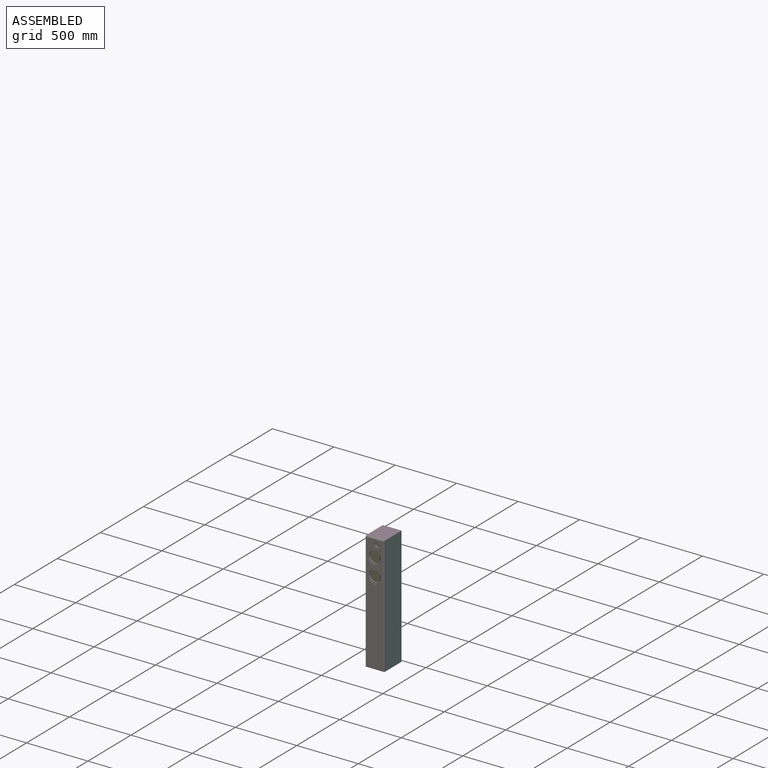
[diagram: assembled view]
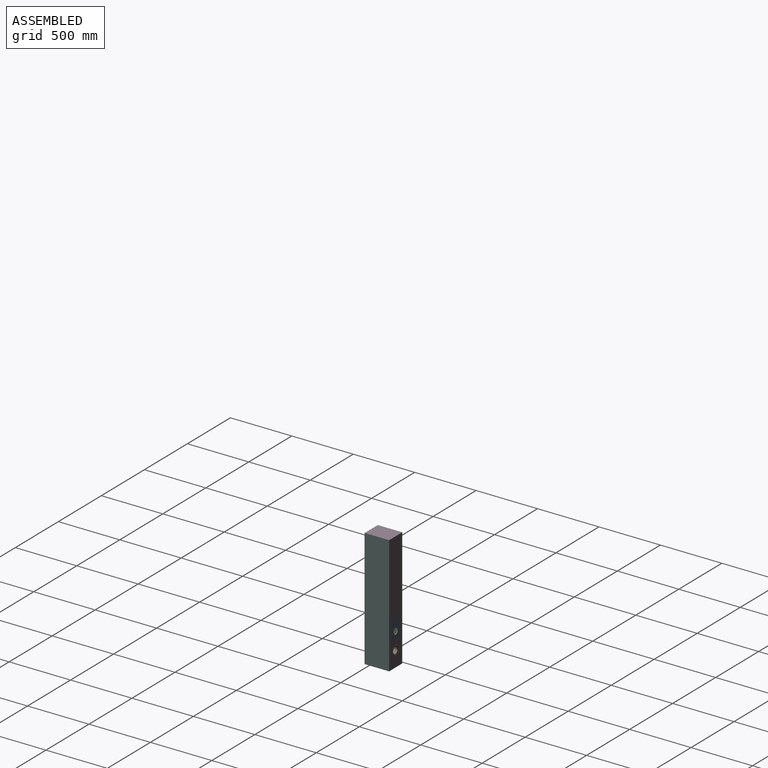
[diagram: assembled view, second angle]
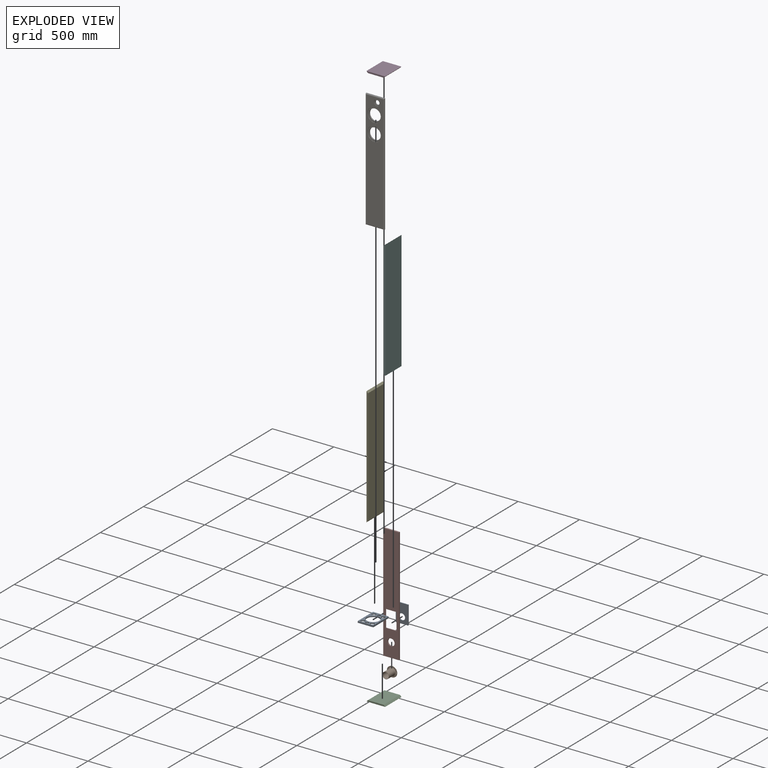
[diagram: exploded view]
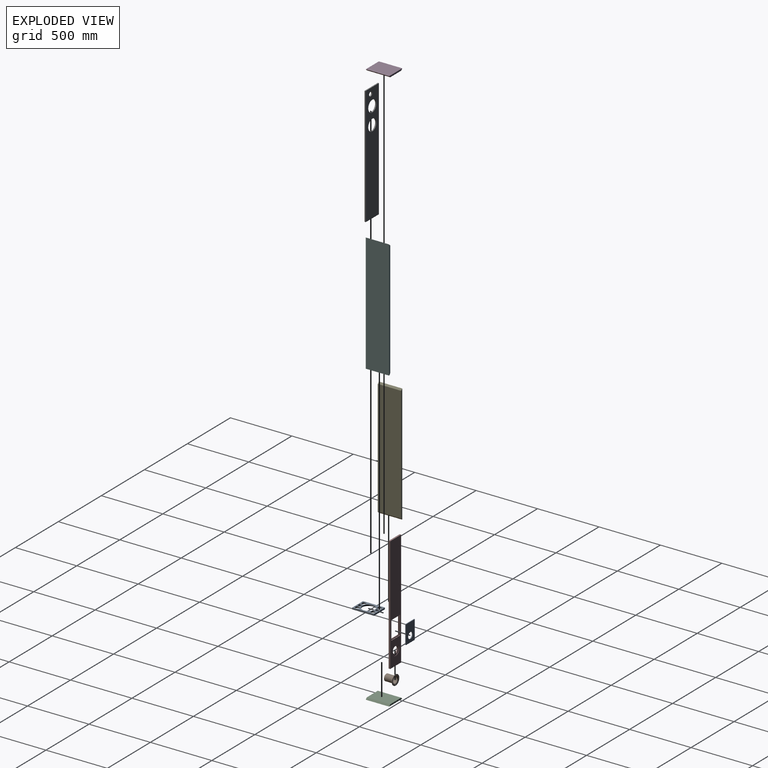
[diagram: exploded view, second angle]
FCSTD DOCUMENT  (FreeCAD 0.21R33771 (Git))
Label: Overnight Sensations TMM Cabinet
License: All rights reserved
objects: Sketcher::SketchObject×10, TechDraw::DrawViewDimension×10, PartDesign::Pad×8, PartDesign::Body×8, App::Part×7, PartDesign::Pocket×6, TechDraw::DrawProjGroupItem×4, PartDesign::Fillet×2, TechDraw::DrawProjGroup×2, TechDraw::DrawHatch×2, Spreadsheet::Sheet×1, Part::FeaturePython×1, App::Link×1, App::DocumentObjectGroup×1, TechDraw::DrawSVGTemplate×1, TechDraw::DrawPage×1
note: 68 computed .brp shape members not serialized (recipe doc carries the construction recipe); baked Part::Feature solids carry a one-line shape summary decoded from their .brp
EXTERNAL_REF file=2x3 Speaker Port.FCStd obj=Body

FEATURE [Sketcher::SketchObject] Sketch004
  FullyConstrained = true
  MapMode = 5
  Placement = pos=(0,0,0) rot=(1,0,0;1.5708rad)
  expr: Constraints[10] = Spreadsheet.width
  expr: Constraints[7] = Spreadsheet.thickness
  expr: Constraints[8] = Spreadsheet.thickness
  expr: Constraints[9] = Spreadsheet.thickness
  sketch-geometry (4):
    g0: LineSegment StartX=0 StartY=0 StartZ=0 EndX=152.4 EndY=0 EndZ=0
    g1: LineSegment StartX=0 StartY=0 StartZ=0 EndX=12.7 EndY=12.7 EndZ=0
    g2: LineSegment StartX=152.4 StartY=0 StartZ=0 EndX=139.7 EndY=12.7 EndZ=0
    g3: LineSegment StartX=12.7 StartY=12.7 StartZ=0 EndX=139.7 EndY=12.7 EndZ=0
  constraints (11):
    c: Horizontal(g0)
    c: Coincident(g0,g-1)
    c: Coincident(g1,g0)
    c: Coincident(g2,g0)
    c: Coincident(g3,g1)
    c: Coincident(g3,g2)
    c: Horizontal(g3)
    c: DistanceY(g-1,g1) = 12.7
    c: DistanceX(g0,g1) = 12.7
    c: DistanceX(g2,g0) = 12.7
    c: DistanceX(g0,g0) = 152.4
FEATURE [PartDesign::Pad] Pad002
  Direction = (0,-1,2e-16)
  Length = 190.5
  Length2 = 10
  Placement = pos=(0,0,0) rot=(1,0,0;1.5708rad)
  Profile = -> Sketch004
  ReferenceAxis = -> Sketch004 [N_Axis]
  Type = 0
  expr: Length = Spreadsheet.depth - Spreadsheet.thickness
FEATURE [PartDesign::Body] Body002
  Group = -> [Sketch004,Pad002]
  Origin = -> Origin002
  Tip = -> Pad002
FEATURE [Sketcher::SketchObject] Sketch005
  FullyConstrained = true
  MapMode = 5
  Placement = pos=(0,0,0) rot=(1,0,0;1.5708rad)
  expr: Constraints[10] = Spreadsheet.width
  expr: Constraints[7] = Spreadsheet.thickness
  expr: Constraints[8] = Spreadsheet.thickness
  expr: Constraints[9] = Spreadsheet.thickness
  sketch-geometry (4):
    g0: LineSegment StartX=0 StartY=0 StartZ=0 EndX=152.4 EndY=0 EndZ=0
    g1: LineSegment StartX=0 StartY=0 StartZ=0 EndX=12.7 EndY=12.7 EndZ=0
    g2: LineSegment StartX=152.4 StartY=0 StartZ=0 EndX=139.7 EndY=12.7 EndZ=0
    g3: LineSegment StartX=12.7 StartY=12.7 StartZ=0 EndX=139.7 EndY=12.7 EndZ=0
  constraints (11):
    c: Horizontal(g0)
    c: Coincident(g0,g-1)
    c: Coincident(g1,g0)
    c: Coincident(g2,g0)
    c: Coincident(g3,g1)
    c: Coincident(g3,g2)
    c: Horizontal(g3)
    c: DistanceY(g-1,g1) = 12.7
    c: DistanceX(g0,g1) = 12.7
    c: DistanceX(g2,g0) = 12.7
    c: DistanceX(g0,g0) = 152.4
FEATURE [PartDesign::Pad] Pad003
  Direction = (0,-1,2e-16)
  Length = 190.5
  Length2 = 10
  Placement = pos=(0,0,0) rot=(1,0,0;1.5708rad)
  Profile = -> Sketch005
  ReferenceAxis = -> Sketch005 [N_Axis]
  Type = 0
  expr: Length = Spreadsheet.depth - Spreadsheet.thickness
FEATURE [PartDesign::Body] Body003
  Group = -> [Sketch005,Pad003]
  Origin = -> Origin003
  Placement = pos=(0,0,0) rot=(0,1,0;3.14159rad)
  Tip = -> Pad003
FEATURE [App::Part] Part  label="bottom"
  Group = -> [Body002]
  Origin = -> Origin
FEATURE [App::Part] Part001  label="top"
  Group = -> [Body003]
  Origin = -> Origin004
  Placement = pos=(152.4,0,965.2) rot=(0,0,1;0rad)
  expr: .Placement.Base.x = Spreadsheet.width
  expr: .Placement.Base.z = Spreadsheet.height
FEATURE [Sketcher::SketchObject] Sketch006
  FullyConstrained = true
  MapMode = 5
  Placement = pos=(0,0,0) rot=(1,0,0;1.5708rad)
  expr: Constraints[1] = Spreadsheet.height
  expr: Constraints[2] = Spreadsheet.thickness
  expr: Constraints[6] = Spreadsheet.thickness
  sketch-geometry (4):
    g0: LineSegment StartX=0 StartY=965.2 StartZ=0 EndX=0 EndY=0 EndZ=0
    g1: LineSegment StartX=0 StartY=0 StartZ=0 EndX=12.7 EndY=12.7 EndZ=0
    g2: LineSegment StartX=0 StartY=965.2 StartZ=0 EndX=12.7 EndY=952.5 EndZ=0
    g3: LineSegment StartX=12.7 StartY=12.7 StartZ=0 EndX=12.7 EndY=952.5 EndZ=0
  constraints (11):
    c: Vertical(g0)
    c: DistanceY(g0,g0) = 965.2
    c: DistanceY(g2,g0) = 12.7
    c: Coincident(g3,g1)
    c: Coincident(g3,g2)
    c: Vertical(g3)
    c: DistanceX(g0,g1) = 12.7
    c: Angle(g1,g0) = 0.785398
    c: Coincident(g0,g2)
    c: Coincident(g0,g1)
    c: Coincident(g0,g-1)
FEATURE [PartDesign::Pad] Pad
  Direction = (0,-1,2e-16)
  Length = 190.5
  Length2 = 10
  Placement = pos=(0,0,0) rot=(1,0,0;1.5708rad)
  Profile = -> Sketch006
  ReferenceAxis = -> Sketch006 [N_Axis]
  Type = 0
  expr: Length = Spreadsheet.depth - Spreadsheet.thickness
FEATURE [PartDesign::Body] Body
  Group = -> [Sketch006,Pad]
  Origin = -> Origin006
  Tip = -> Pad
FEATURE [App::Part] Part002  label="left"
  Group = -> [Body]
  Origin = -> Origin005
FEATURE [Sketcher::SketchObject] Sketch007
  FullyConstrained = true
  MapMode = 5
  Placement = pos=(0,0,0) rot=(1,0,0;1.5708rad)
  expr: Constraints[1] = Spreadsheet.height
  expr: Constraints[2] = Spreadsheet.thickness
  expr: Constraints[6] = Spreadsheet.thickness
  sketch-geometry (4):
    g0: LineSegment StartX=0 StartY=965.2 StartZ=0 EndX=0 EndY=0 EndZ=0
    g1: LineSegment StartX=0 StartY=0 StartZ=0 EndX=12.7 EndY=12.7 EndZ=0
    g2: LineSegment StartX=0 StartY=965.2 StartZ=0 EndX=12.7 EndY=952.5 EndZ=0
    g3: LineSegment StartX=12.7 StartY=12.7 StartZ=0 EndX=12.7 EndY=952.5 EndZ=0
  constraints (11):
    c: Vertical(g0)
    c: DistanceY(g0,g0) = 965.2
    c: DistanceY(g2,g0) = 12.7
    c: Coincident(g3,g1)
    c: Coincident(g3,g2)
    c: Vertical(g3)
    c: DistanceX(g0,g1) = 12.7
    c: Angle(g1,g0) = 0.785398
    c: Coincident(g0,g2)
    c: Coincident(g0,g1)
    c: Coincident(g0,g-1)
FEATURE [PartDesign::Pad] Pad004
  Direction = (0,-1,2e-16)
  Length = 190.5
  Length2 = 10
  Placement = pos=(0,0,0) rot=(1,0,0;1.5708rad)
  Profile = -> Sketch007
  ReferenceAxis = -> Sketch007 [N_Axis]
  Type = 0
  expr: Length = Spreadsheet.depth - Spreadsheet.thickness
FEATURE [PartDesign::Body] Body004
  Group = -> [Sketch007,Pad004]
  Origin = -> Origin008
  Tip = -> Pad004
FEATURE [App::Part] Part003  label="right"
  Group = -> [Body004]
  Origin = -> Origin007
  Placement = pos=(152.4,-190.5,0) rot=(0,0,1;3.14159rad)
  expr: .Placement.Base.x = Spreadsheet.width
  expr: .Placement.Base.y = -Spreadsheet.depth + Spreadsheet.thickness
FEATURE [Spreadsheet::Sheet] Spreadsheet
  cells = A1='Speaker Height; B1(height)==38 "; A2='Speaker Width; B2(width)==6 "; A3='Speaker Depth; B3(depth)==8 "; A4='Material Thickness; B4(thickness)==0.5 "; A7='Tweeter From Top; B7(tweeter_top)==1.75 "; A8='Tweeter From Side; B8(tweeter_side)==3.75 "; C8='0.625 from side, not used; A10='Mid Speaker From Top; B10(mid_top)==5.5 "; A11='Mid From Side; B11(mid_side)==width / 2; C11='centered, not used; A13='Low From Top; B13(low_top)==11 "; A14='Low From Side; B14(low_side)==width / 2; C14='centered, not used; A16='Driver Dimensions; B16='diameter; A17='HiVi B4N Diameter; B17(driver_diameter)==4.59 "; C17='https://www.parts-express.com/HiVi-B4N-4-Aluminum-Midbass-Round-Frame-297-429?quantity=1; A18='HiVi B4N Cutout Diameter; B18(driver_cutout)==3.66 "; A19='HiVi B4N Depth; B19==2.85 "; A20='HiVi B4N Recess; B20(driver_recess)==0.125 "; A22='HiVi T20 Diameter; B22(tweeter_diameter)==2 "; C22='https://www.parts-express.com/HiVi-T20-8-3-4-20mm-Textile-Dome-Tweeter-8-Ohm-297-464?quantity=1; A23='HiVi T20 Cutout Diameter; B23(tweeter_cutout)==1.385 "; A24='HiVi T20 Depth; B24==0.5 "; A25='HiVi T20 Recess; B25(tweeter_recess)==0.1875 "; A27='Port From Bottom; B27(port_bottom)==5 "; A28='Port Diameter; B28(port_diameter)==2.125 "; A29='Port Cutout; B29(port_cutout_diameter)==port_diameter + 0.125 "; A30='Port Lentgh; B30(port_length)==3 "; A31='Port Flange Diameter; B31(port_flange_diameter)==3.25 "; A32='Port Recess; B32(port_recess)==0.125 "
FEATURE [Sketcher::SketchObject] Sketch009
  FullyConstrained = true
  MapMode = 5
  Placement = pos=(0,-12.7,0) rot=(1,0,0;1.5708rad)
  expr: Constraints[10] = Spreadsheet.height
  expr: Constraints[11] = Spreadsheet.tweeter_cutout
  expr: Constraints[12] = Spreadsheet.driver_cutout
  expr: Constraints[13] = Spreadsheet.driver_cutout
  expr: Constraints[14] = Spreadsheet.tweeter_top
  expr: Constraints[15] = Spreadsheet.mid_top
  expr: Constraints[16] = Spreadsheet.low_top
  expr: Constraints[17] = Spreadsheet.width * 0.625
  expr: Constraints[18] = Spreadsheet.tweeter_diameter
  expr: Constraints[21] = Spreadsheet.driver_diameter
  expr: Constraints[23] = Spreadsheet.driver_diameter
  expr: Constraints[24] = Spreadsheet.width / 2
  expr: Constraints[25] = Spreadsheet.width / 2
  expr: Constraints[9] = Spreadsheet.width
  sketch-geometry (10):
    g0: LineSegment StartX=0 StartY=0 StartZ=0 EndX=152.4 EndY=0 EndZ=0
    g1: LineSegment StartX=152.4 StartY=0 StartZ=0 EndX=152.4 EndY=965.2 EndZ=0
    g2: LineSegment StartX=152.4 StartY=965.2 StartZ=0 EndX=0 EndY=965.2 EndZ=0
    g3: LineSegment StartX=0 StartY=965.2 StartZ=0 EndX=0 EndY=0 EndZ=0
    g4: Circle CenterX=76.2 CenterY=825.5 CenterZ=0 NormalX=0 NormalY=0 NormalZ=1 AngleXU=0 Radius=46.482
    g5: Circle CenterX=76.2 CenterY=685.8 CenterZ=0 NormalX=0 NormalY=0 NormalZ=1 AngleXU=0 Radius=46.482
    g6: Circle CenterX=95.25 CenterY=920.75 CenterZ=0 NormalX=0 NormalY=0 NormalZ=1 AngleXU=0 Radius=17.5895
    g7: Circle CenterX=95.25 CenterY=920.75 CenterZ=0 NormalX=0 NormalY=0 NormalZ=1 AngleXU=0 Radius=25.4
    g8: Circle CenterX=76.2 CenterY=825.5 CenterZ=0 NormalX=0 NormalY=0 NormalZ=1 AngleXU=0 Radius=58.293
    g9: Circle CenterX=76.2 CenterY=685.8 CenterZ=0 NormalX=0 NormalY=0 NormalZ=1 AngleXU=0 Radius=58.293
  constraints (26):
    c: Coincident(g0,g1)
    c: Coincident(g1,g2)
    c: Coincident(g2,g3)
    c: Coincident(g3,g0)
    c: Horizontal(g0)
    c: Horizontal(g2)
    c: Vertical(g1)
    c: Vertical(g3)
    c: Coincident(g0,g-1)
    c: DistanceX(g2,g2) = 152.4
    c: DistanceY(g1,g1) = 965.2
    c: Diameter(g6) = 35.179
    c: Diameter(g4) = 92.964
    c: Diameter(g5) = 92.964
    c: Distance(g6,g2) = 44.45
    c: Distance(g4,g2) = 139.7
    c: Distance(g5,g2) = 279.4
    c: Distance(g6,g3) = 95.25
    c: Diameter(g7) = 50.8
    c: Coincident(g7,g6)
    c: Coincident(g8,g4)
    c: Diameter(g8) = 116.586
    c: Coincident(g9,g5)
    c: Diameter(g9) = 116.586
    c: DistanceX(g2,g4) = 76.2
    c: Distance(g5,g3) = 76.2
FEATURE [Sketcher::SketchObject] Sketch010
  FullyConstrained = true
  MapMode = 5
  Placement = pos=(0,0,0) rot=(1,0,0;1.5708rad)
  expr: Constraints[10] = Spreadsheet.height
  expr: Constraints[9] = Spreadsheet.width
  sketch-geometry (4):
    g0: LineSegment StartX=0 StartY=0 StartZ=0 EndX=152.4 EndY=0 EndZ=0
    g1: LineSegment StartX=152.4 StartY=0 StartZ=0 EndX=152.4 EndY=965.2 EndZ=0
    g2: LineSegment StartX=152.4 StartY=965.2 StartZ=0 EndX=0 EndY=965.2 EndZ=0
    g3: LineSegment StartX=0 StartY=965.2 StartZ=0 EndX=0 EndY=0 EndZ=0
  constraints (11):
    c: Coincident(g0,g1)
    c: Coincident(g1,g2)
    c: Coincident(g2,g3)
    c: Coincident(g3,g0)
    c: Horizontal(g0)
    c: Horizontal(g2)
    c: Vertical(g1)
    c: Vertical(g3)
    c: Coincident(g0,g-1)
    c: DistanceX(g2,g2) = 152.4
    c: DistanceY(g1,g1) = 965.2
FEATURE [PartDesign::Pad] Pad005
  Direction = (0,-1,2e-16)
  Length = 12.7
  Length2 = 10
  Placement = pos=(0,0,0) rot=(1,0,0;1.5708rad)
  Profile = -> Sketch010
  ReferenceAxis = -> Sketch010 [N_Axis]
  Type = 0
  expr: Length = Spreadsheet.thickness
FEATURE [PartDesign::Pocket] Pocket
  BaseFeature = -> Pad005
  Direction = (0,1,-2e-16)
  Length = 5
  Length2 = 5
  Placement = pos=(0,0,0) rot=(1,0,0;1.5708rad)
  Profile = -> Sketch009 [Edge7,Edge5,Edge6]
  ReferenceAxis = -> Sketch009 [N_Axis]
  Type = 1
FEATURE [PartDesign::Pocket] Pocket001
  BaseFeature = -> Pocket
  Direction = (0,1,-2e-16)
  Length = 3.175
  Length2 = 5
  Placement = pos=(0,0,0) rot=(1,0,0;1.5708rad)
  Profile = -> Sketch009 [Edge9,Edge10]
  ReferenceAxis = -> Sketch009 [N_Axis]
  Type = 0
  expr: Length = Spreadsheet.driver_recess
FEATURE [PartDesign::Pocket] Pocket002
  BaseFeature = -> Pocket001
  Direction = (0,1,-2e-16)
  Length = 3.175
  Length2 = 5
  Placement = pos=(0,0,0) rot=(1,0,0;1.5708rad)
  Profile = -> Sketch009 [Edge8]
  ReferenceAxis = -> Sketch009 [N_Axis]
  Type = 0
  expr: Length = Spreadsheet.tweeter_recess
FEATURE [Sketcher::SketchObject] Sketch011
  FullyConstrained = true
  MapMode = 5
  Placement = pos=(0,0,0) rot=(1,0,0;1.5708rad)
  expr: Constraints[10] = Spreadsheet.height - 2 * Spreadsheet.thickness
  expr: Constraints[9] = Spreadsheet.width - 2 * Spreadsheet.thickness
  sketch-geometry (4):
    g0: LineSegment StartX=0 StartY=0 StartZ=0 EndX=127 EndY=0 EndZ=0
    g1: LineSegment StartX=127 StartY=0 StartZ=0 EndX=127 EndY=939.8 EndZ=0
    g2: LineSegment StartX=127 StartY=939.8 StartZ=0 EndX=0 EndY=939.8 EndZ=0
    g3: LineSegment StartX=0 StartY=939.8 StartZ=0 EndX=0 EndY=0 EndZ=0
  constraints (11):
    c: Coincident(g0,g1)
    c: Coincident(g1,g2)
    c: Coincident(g2,g3)
    c: Coincident(g3,g0)
    c: Horizontal(g0)
    c: Horizontal(g2)
    c: Vertical(g1)
    c: Vertical(g3)
    c: Coincident(g0,g-1)
    c: DistanceX(g2,g2) = 127
    c: DistanceY(g1,g1) = 939.8
FEATURE [PartDesign::Pad] Pad006
  Direction = (0,-1,2e-16)
  Length = 12.7
  Length2 = 10
  Placement = pos=(0,0,0) rot=(1,0,0;1.5708rad)
  Profile = -> Sketch011
  ReferenceAxis = -> Sketch011 [N_Axis]
  Type = 0
  expr: Length = Spreadsheet.thickness
FEATURE [Sketcher::SketchObject] Sketch012
  FullyConstrained = true
  MapMode = 5
  Placement = pos=(0,-12.7,0) rot=(1,0,0;1.5708rad)
  expr: Constraints[0] = Spreadsheet.port_bottom - Spreadsheet.thickness
  expr: Constraints[1] = (Spreadsheet.width - Spreadsheet.thickness * 2) / 2
  expr: Constraints[2] = Spreadsheet.port_cutout_diameter
  expr: Constraints[4] = Spreadsheet.port_flange_diameter
  sketch-geometry (10):
    g0: Circle CenterX=63.5 CenterY=114.3 CenterZ=0 NormalX=0 NormalY=0 NormalZ=1 AngleXU=0 Radius=28.575
    g1: Circle CenterX=63.5 CenterY=114.3 CenterZ=0 NormalX=0 NormalY=0 NormalZ=1 AngleXU=0 Radius=41.275
    g2: LineSegment StartX=12.7 StartY=203.2 StartZ=0 EndX=114.3 EndY=203.2 EndZ=0
    g3: LineSegment StartX=114.3 StartY=203.2 StartZ=0 EndX=114.3 EndY=355.6 EndZ=0
    g4: LineSegment StartX=114.3 StartY=355.6 StartZ=0 EndX=12.7 EndY=355.6 EndZ=0
    g5: LineSegment StartX=12.7 StartY=355.6 StartZ=0 EndX=12.7 EndY=203.2 EndZ=0
    g6: LineSegment StartX=19.05 StartY=209.55 StartZ=0 EndX=107.95 EndY=209.55 EndZ=0
    g7: LineSegment StartX=107.95 StartY=209.55 StartZ=0 EndX=107.95 EndY=349.25 EndZ=0
    g8: LineSegment StartX=107.95 StartY=349.25 StartZ=0 EndX=19.05 EndY=349.25 EndZ=0
    g9: LineSegment StartX=19.05 StartY=349.25 StartZ=0 EndX=19.05 EndY=209.55 EndZ=0
  constraints (29):
    c: DistanceY(g-1,g0) = 114.3
    c: Distance(g0,g-2) = 63.5
    c: Diameter(g0) = 57.15
    c: Coincident(g1,g0)
    c: Diameter(g1) = 82.55
    c: Coincident(g2,g3)
    c: Coincident(g3,g4)
    c: Coincident(g4,g5)
    c: Coincident(g5,g2)
    c: Horizontal(g2)
    c: Horizontal(g4)
    c: Vertical(g3)
    c: Vertical(g5)
    c: DistanceX(g4,g4) = 101.6
    c: DistanceY(g5,g5) = 152.4
    c: DistanceY(g-1,g2) = 203.2
    c: Distance(g2,g-2) = 12.7
    c: Coincident(g6,g7)
    c: Coincident(g7,g8)
    c: Coincident(g8,g9)
    c: Coincident(g9,g6)
    c: Horizontal(g6)
    c: Horizontal(g8)
    c: Vertical(g7)
    c: Vertical(g9)
    c: Distance(g8,g5) = 6.35
    c: Distance(g2,g6) = 6.35
    c: Distance(g3,g7) = 6.35
    c: Distance(g4,g8) = 6.35
FEATURE [PartDesign::Pocket] Pocket003
  BaseFeature = -> Pad006
  Direction = (0,1,-2e-16)
  Length = 5
  Length2 = 5
  Placement = pos=(0,0,0) rot=(1,0,0;1.5708rad)
  Profile = -> Sketch012 [Edge1,Edge7,Edge10,Edge9,Edge8]
  ReferenceAxis = -> Sketch012 [N_Axis]
  Type = 1
FEATURE [PartDesign::Pocket] Pocket004
  BaseFeature = -> Pocket003
  Direction = (0,1,-2e-16)
  Length = 3.175
  Length2 = 5
  Placement = pos=(0,0,0) rot=(1,0,0;1.5708rad)
  Profile = -> Sketch012 [Edge2]
  ReferenceAxis = -> Sketch012 [N_Axis]
  Type = 0
  expr: Length = Spreadsheet.port_recess
FEATURE [PartDesign::Pocket] Pocket005
  BaseFeature = -> Pocket004
  Direction = (0,1,-2e-16)
  Length = 6.35
  Length2 = 5
  Placement = pos=(0,0,0) rot=(1,0,0;1.5708rad)
  Profile = -> Sketch012 [Edge6,Edge5,Edge4,Edge3]
  ReferenceAxis = -> Sketch012 [N_Axis]
  Type = 0
FEATURE [PartDesign::Body] Body006
  Group = -> [Sketch011,Pad006,Sketch012,Pocket003,Pocket004,Pocket005]
  Origin = -> Origin012
  Tip = -> Pocket005
FEATURE [App::Part] Part005  label="back"
  Group = -> [Body006]
  Origin = -> Origin011
  Placement = pos=(139.7,-12.7,12.7) rot=(0,0,1;3.14159rad)
FEATURE [PartDesign::Fillet] Fillet002
  Base = -> Pocket002 [Edge15,Edge10,Edge7,Edge4]
  BaseFeature = -> Pocket002
  Placement = pos=(0,0,0) rot=(1,0,0;1.5708rad)
  Radius = 6.35
  SupportTransform = false
  UseAllEdges = false
FEATURE [PartDesign::Body] Body005
  Group = -> [Sketch009,Sketch010,Pad005,Pocket,Pocket001,Pocket002,Fillet002]
  Origin = -> Origin010
  Tip = -> Fillet002
FEATURE [App::Part] Part004  label="baffle"
  Group = -> [Body005]
  Origin = -> Origin009
  Placement = pos=(0,-190.5,0) rot=(0,0,1;0rad)
  expr: .Placement.Base.y = -Spreadsheet.depth + Spreadsheet.thickness
FEATURE [Sketcher::SketchObject] Sketch013
  FullyConstrained = true
  MapMode = 5
  sketch-geometry (14):
    g0: LineSegment StartX=0 StartY=0 StartZ=0 EndX=127 EndY=0 EndZ=0
    g1: LineSegment StartX=127 StartY=0 StartZ=0 EndX=127 EndY=177.8 EndZ=0
    g2: LineSegment StartX=127 StartY=177.8 StartZ=0 EndX=0 EndY=177.8 EndZ=0
    g3: LineSegment StartX=0 StartY=177.8 StartZ=0 EndX=0 EndY=0 EndZ=0
    g4: Circle CenterX=63.5 CenterY=88.9 CenterZ=0 NormalX=0 NormalY=0 NormalZ=1 AngleXU=0 Radius=50.8
    g5: Circle CenterX=25.4 CenterY=152.4 CenterZ=0 NormalX=0 NormalY=0 NormalZ=1 AngleXU=0 Radius=15.875
    g6: Circle CenterX=101.6 CenterY=152.4 CenterZ=0 NormalX=0 NormalY=0 NormalZ=1 AngleXU=0 Radius=15.875
    g7: Circle CenterX=25.4 CenterY=25.4 CenterZ=0 NormalX=0 NormalY=0 NormalZ=1 AngleXU=0 Radius=15.875
    g8: Circle CenterX=101.6 CenterY=25.4 CenterZ=0 NormalX=0 NormalY=0 NormalZ=1 AngleXU=0 Radius=15.875
    g9: Circle CenterX=63.5 CenterY=158.75 CenterZ=0 NormalX=0 NormalY=0 NormalZ=1 AngleXU=0 Radius=12.7
    g10: Circle CenterX=63.5 CenterY=19.05 CenterZ=0 NormalX=0 NormalY=0 NormalZ=1 AngleXU=0 Radius=12.7
    g11: LineSegment StartX=63.5 StartY=177.8 StartZ=0 EndX=63.5 EndY=0 EndZ=0
    g12: LineSegment StartX=63.5 StartY=139.7 StartZ=0 EndX=63.5 EndY=177.8 EndZ=0
    g13: LineSegment StartX=63.5 StartY=38.1 StartZ=0 EndX=63.5 EndY=0 EndZ=0
  constraints (37):
    c: Coincident(g0,g1)
    c: Coincident(g1,g2)
    c: Coincident(g2,g3)
    c: Coincident(g3,g0)
    c: Horizontal(g0)
    c: Horizontal(g2)
    c: Vertical(g1)
    c: Vertical(g3)
    c: Distance(g1,g3) = 127
    c: Distance(g0,g2) = 177.8
    c: Coincident(g0,g-1)
    c: Diameter(g4) = 101.6
    c: Symmetric(g2,g0,g4)
    c: Vertical(g7,g5)
    c: Horizontal(g5,g6)
    c: Vertical(g8,g6)
    c: Horizontal(g7,g8)
    c: Distance(g7,g0) = 25.4
    c: Distance(g5,g2) = 25.4
    c: Distance(g6,g1) = 25.4
    c: Distance(g5,g3) = 25.4
    c: Equal(g6,g5)
    c: Equal(g6,g7)
    c: Equal(g6,g8)
    c: Diameter(g6) = 31.75
    c: Diameter(g9) = 25.4
    c: Diameter(g10) = 25.4
    c: Vertical(g10,g9)
    c: Symmetric(g2,g2,g11)
    c: Symmetric(g0,g0,g11)
    c: PointOnObject(g9,g11)
    c: PointOnObject(g12,g4)
    c: Coincident(g12,g11)
    c: Symmetric(g12,g12,g9)
    c: PointOnObject(g13,g4)
    c: Coincident(g13,g11)
    c: Symmetric(g13,g11,g10)
FEATURE [PartDesign::Pad] Pad007
  Direction = (0,0,1)
  Length = 12.7
  Length2 = 10
  Profile = -> Sketch013
  ReferenceAxis = -> Sketch013 [N_Axis]
  Type = 0
FEATURE [PartDesign::Fillet] Fillet
  Base = -> Pad007 [Face7,Face11,Face6,Face5,Face8,Face10,Face9]
  BaseFeature = -> Pad007
  Radius = 3.048
  SupportTransform = false
  UseAllEdges = false
FEATURE [PartDesign::Body] Body007
  Group = -> [Sketch013,Pad007,Fillet]
  Origin = -> Origin014
  Tip = -> Fillet
FEATURE [App::Part] Part006  label="window_brace"
  Group = -> [Body007]
  Origin = -> Origin013
  Placement = pos=(12.7,-190.5,368.3) rot=(0,0,1;0rad)
FEATURE [Part::FeaturePython] Clone  label="window_brace001"  # Draft clone (typed FeaturePython)
  AttacherType = Attacher::AttachEngine3D
  Fuse = false
  Objects = -> [Part006]
  Placement = pos=(12.7,-190.5,622.3) rot=(0,0,1;0rad)
  Scale = (1,1,1)
FEATURE [App::Link] Link  label="2x3 port"
  LinkPlacement = pos=(76.2,-1.17709e-05,127) rot=(1,0,0;1.5708rad)
  LinkedObject = -> <external 2x3 Speaker Port.FCStd>#Body
  Placement = pos=(76.2,-1.17709e-05,127) rot=(1,0,0;1.5708rad)
FEATURE [Sketcher::SketchObject] Sketch
  FullyConstrained = true
  MapMode = 5
  Placement = pos=(0,0,0) rot=(1,0,0;1.5708rad)
  sketch-geometry (5):
    g0: LineSegment StartX=0 StartY=0 StartZ=0 EndX=101.6 EndY=0 EndZ=0
    g1: LineSegment StartX=101.6 StartY=0 StartZ=0 EndX=101.6 EndY=152.4 EndZ=0
    g2: LineSegment StartX=101.6 StartY=152.4 StartZ=0 EndX=0 EndY=152.4 EndZ=0
    g3: LineSegment StartX=0 StartY=152.4 StartZ=0 EndX=0 EndY=0 EndZ=0
    g4: Circle CenterX=50.8 CenterY=50.8 CenterZ=0 NormalX=0 NormalY=0 NormalZ=1 AngleXU=0 Radius=25.4
  constraints (14):
    c: Coincident(g0,g1)
    c: Coincident(g1,g2)
    c: Coincident(g2,g3)
    c: Coincident(g3,g0)
    c: Horizontal(g0)
    c: Horizontal(g2)
    c: Vertical(g1)
    c: Vertical(g3)
    c: Distance(g1,g3) = 101.6
    c: Distance(g0,g2) = 152.4
    c: Coincident(g0,g-1)
    c: Diameter(g4) = 50.8
    c: DistanceY(g-1,g4) = 50.8
    c: Distance(g4,g1) = 50.8
FEATURE [PartDesign::Pad] Pad008
  Direction = (0,-1,2e-16)
  Length = 6.35
  Length2 = 10
  Placement = pos=(0,0,0) rot=(1,0,0;1.5708rad)
  Profile = -> Sketch
  ReferenceAxis = -> Sketch [N_Axis]
  Type = 0
FEATURE [PartDesign::Body] Body008  label="terminal_cover"
  Group = -> [Sketch,Pad008]
  Origin = -> Origin015
  Placement = pos=(25.4,0,215.9) rot=(0,0,1;0rad)
  Tip = -> Pad008
FEATURE [App::DocumentObjectGroup] Group
  Group = -> [Part005,Part,Part002,Part001,Part003,Part004,Part006,Clone,Link,Body008]
FEATURE [TechDraw::DrawSVGTemplate] Template
  Height = 215.9
  Orientation = 1
  Template = /Applications/FreeCAD.app/Contents/Resources/share/Mod/TechDraw/Templates/USLetter_Landscape_blank.svg
  Width = 279.4
FEATURE [TechDraw::DrawProjGroupItem] View  label="Front"
  CoarseView = false
  Direction = (0,-1,0)
  Focus = 100
  HardHidden = false
  IsoCount = 0
  IsoHidden = false
  IsoVisible = false
  LockPosition = false
  Perspective = false
  Rotation = 0
  RotationVector = (1,0,0)
  Scale = 0.125
  ScaleType = 2
  ScrubCount = 1
  SeamHidden = false
  SeamVisible = false
  SmoothHidden = false
  SmoothVisible = true
  Source = -> [Template,Group]
  Type = 0
  X = 131.41
  XDirection = (1,0,0)
  Y = 120.908
FEATURE [TechDraw::DrawProjGroupItem] View001  label="Back"
  CoarseView = false
  Direction = (-2e-16,1,0)
  Focus = 100
  HardHidden = false
  IsoCount = 0
  IsoHidden = false
  IsoVisible = false
  LockPosition = false
  Perspective = false
  Rotation = 0
  RotationVector = (1,0,0)
  Scale = 0.125
  ScaleType = 2
  ScrubCount = 1
  SeamHidden = false
  SeamVisible = false
  SmoothHidden = false
  SmoothVisible = true
  Source = -> [Group]
  Type = 0
  X = 240.831
  XDirection = (-1,-2e-16,0)
  Y = 120.908
FEATURE [TechDraw::DrawViewDimension] Dimension
  AngleOverride = false
  Arbitrary = false
  ArbitraryTolerances = false
  EqualTolerance = true
  ExtensionAngle = 0
  FormatSpec = %.2w
  FormatSpecOverTolerance = %+.2w
  FormatSpecUnderTolerance = %+.2w
  Inverted = false
  LineAngle = 0
  LockPosition = false
  MeasureType = 1
  OverTolerance = 0
  References2D = -> [View]
  Rotation = 0
  ScaleType = 0
  TheoreticalExact = false
  Type = 1
  UnderTolerance = 0
  X = 0
  Y = -32.4441
FEATURE [TechDraw::DrawViewDimension] Dimension001
  AngleOverride = false
  Arbitrary = false
  ArbitraryTolerances = false
  EqualTolerance = true
  ExtensionAngle = 0
  FormatSpec = %.2w
  FormatSpecOverTolerance = %+.2w
  FormatSpecUnderTolerance = %+.2w
  Inverted = false
  LineAngle = 0
  LockPosition = false
  MeasureType = 1
  OverTolerance = 0
  References2D = -> [View]
  Rotation = 0
  ScaleType = 0
  TheoreticalExact = false
  Type = 2
  UnderTolerance = 0
  X = -20.46
  Y = -49.3228
FEATURE [TechDraw::DrawViewDimension] Dimension002
  AngleOverride = false
  Arbitrary = false
  ArbitraryTolerances = false
  EqualTolerance = true
  ExtensionAngle = 0
  FormatSpec = %.2w
  FormatSpecOverTolerance = %+.2w
  FormatSpecUnderTolerance = %+.2w
  Inverted = false
  LineAngle = 0
  LockPosition = false
  MeasureType = 1
  OverTolerance = 0
  References2D = -> [View]
  Rotation = 0
  ScaleType = 0
  TheoreticalExact = false
  Type = 0
  UnderTolerance = 0
  X = 23.4943
  Y = 51.5938
FEATURE [TechDraw::DrawViewDimension] Dimension003
  AngleOverride = false
  Arbitrary = false
  ArbitraryTolerances = false
  EqualTolerance = true
  ExtensionAngle = 0
  FormatSpec = %.2w
  FormatSpecOverTolerance = %+.2w
  FormatSpecUnderTolerance = %+.2w
  Inverted = false
  LineAngle = 0
  LockPosition = false
  MeasureType = 1
  OverTolerance = 0
  References2D = -> [View]
  Rotation = 0
  ScaleType = 0
  TheoreticalExact = false
  Type = 0
  UnderTolerance = 0
  X = 28.8235
  Y = 30.8626
FEATURE [TechDraw::DrawViewDimension] Dimension004
  AngleOverride = false
  Arbitrary = false
  ArbitraryTolerances = false
  EqualTolerance = true
  ExtensionAngle = 0
  FormatSpec = %.2w
  FormatSpecOverTolerance = %+.2w
  FormatSpecUnderTolerance = %+.2w
  Inverted = false
  LineAngle = 0
  LockPosition = false
  MeasureType = 1
  OverTolerance = 0
  References2D = -> [View]
  Rotation = 0
  ScaleType = 0
  TheoreticalExact = false
  Type = 0
  UnderTolerance = 0
  X = 25.1625
  Y = 67.8403
FEATURE [TechDraw::DrawViewDimension] Dimension005
  AngleOverride = false
  Arbitrary = false
  ArbitraryTolerances = false
  EqualTolerance = true
  ExtensionAngle = 0
  FormatSpec = %.2w
  FormatSpecOverTolerance = %+.2w
  FormatSpecUnderTolerance = %+.2w
  Inverted = false
  LineAngle = 0
  LockPosition = false
  MeasureType = 1
  OverTolerance = 0
  References2D = -> [View]
  Rotation = 0
  ScaleType = 0
  TheoreticalExact = false
  Type = 0
  UnderTolerance = 0
  X = -21.3664
  Y = 67.3254
FEATURE [TechDraw::DrawViewDimension] Dimension007
  AngleOverride = false
  Arbitrary = false
  ArbitraryTolerances = false
  EqualTolerance = true
  ExtensionAngle = 0
  FormatSpec = %.2w
  FormatSpecOverTolerance = %+.2w
  FormatSpecUnderTolerance = %+.2w
  Inverted = false
  LineAngle = 0
  LockPosition = false
  MeasureType = 1
  OverTolerance = 0
  References2D = -> [View001]
  Rotation = 0
  ScaleType = 0
  TheoreticalExact = false
  Type = 0
  UnderTolerance = 0
  X = 17.6038
  Y = -52.3875
FEATURE [TechDraw::DrawViewDimension] Dimension008
  AngleOverride = true
  Arbitrary = false
  ArbitraryTolerances = false
  EqualTolerance = true
  ExtensionAngle = 0
  FormatSpec = %.2w
  FormatSpecOverTolerance = %+.2w
  FormatSpecUnderTolerance = %+.2w
  Inverted = false
  LineAngle = 90
  LockPosition = false
  MeasureType = 1
  OverTolerance = 0
  References2D = -> [View001]
  Rotation = 0
  ScaleType = 0
  TheoreticalExact = false
  Type = 0
  UnderTolerance = 0
  X = -18.8474
  Y = -46.8312
FEATURE [TechDraw::DrawViewDimension] Dimension009
  AngleOverride = false
  Arbitrary = false
  ArbitraryTolerances = false
  EqualTolerance = true
  ExtensionAngle = 0
  FormatSpec = %.2w
  FormatSpecOverTolerance = %+.2w
  FormatSpecUnderTolerance = %+.2w
  Inverted = false
  LineAngle = 0
  LockPosition = false
  MeasureType = 1
  OverTolerance = 0
  References2D = -> [View001]
  Rotation = 0
  ScaleType = 0
  TheoreticalExact = false
  Type = 2
  UnderTolerance = 0
  X = -18.8474
  Y = -23.8125
FEATURE [TechDraw::DrawProjGroupItem] ProjItem  label="Front001"
  CoarseView = false
  Direction = (0.57735,-0.57735,0.57735)
  Focus = 100
  HardHidden = false
  IsoCount = 0
  IsoHidden = false
  IsoVisible = false
  LockPosition = true
  Perspective = false
  Rotation = 0
  RotationVector = (0.707107,0.707107,0)
  Scale = 0.142857
  ScaleType = 2
  ScrubCount = 1
  SeamHidden = false
  SeamVisible = false
  SmoothHidden = false
  SmoothVisible = true
  Source = -> [Group]
  Type = 0
  X = 0
  XDirection = (0.707107,0.707107,0)
  Y = 0
FEATURE [TechDraw::DrawProjGroup] ProjGroup
  Anchor = -> ProjItem
  AutoDistribute = true
  LockPosition = false
  ProjectionType = 0
  Rotation = 0
  Scale = 0.142857
  ScaleType = 2
  Source = -> [Group]
  Views = -> [ProjItem]
  X = 63.991
  Y = 123.881
  spacingX = 15.0812
  spacingY = 15.0812
FEATURE [TechDraw::DrawHatch] Hatch
  HatchPattern = /Applications/FreeCAD.app/Contents/Resources/share/Mod/TechDraw/Patterns/woodgrain.svg
  Source = -> ProjItem [Face1]
FEATURE [TechDraw::DrawHatch] Hatch001
  HatchPattern = /Applications/FreeCAD.app/Contents/Resources/share/Mod/TechDraw/Patterns/woodgrain.svg
  Source = -> ProjItem [Face3]
FEATURE [TechDraw::DrawProjGroupItem] ProjItem001  label="Front002"
  CoarseView = false
  Direction = (1,0,0)
  Focus = 100
  HardHidden = false
  IsoCount = 0
  IsoHidden = false
  IsoVisible = false
  LockPosition = true
  Perspective = false
  Rotation = 0
  RotationVector = (0,1,0)
  Scale = 0.125
  ScaleType = 2
  ScrubCount = 1
  SeamHidden = false
  SeamVisible = false
  SmoothHidden = false
  SmoothVisible = true
  Source = -> [Part005,Part,Part001,Part004,Part006,Clone]
  Type = 0
  X = 0
  XDirection = (0,1,0)
  XSource = -> [Link]
  Y = 0
FEATURE [TechDraw::DrawProjGroup] ProjGroup001
  Anchor = -> ProjItem001
  AutoDistribute = true
  LockPosition = false
  ProjectionType = 0
  Rotation = 0
  Scale = 0.125
  ScaleType = 2
  Source = -> [Part005,Part,Part001,Part004,Part006,Clone]
  Views = -> [ProjItem001]
  X = 190.238
  XSource = -> [Link]
  Y = 120.515
  spacingX = 15.0812
  spacingY = 15.0812
FEATURE [TechDraw::DrawViewDimension] Dimension010
  AngleOverride = false
  Arbitrary = false
  ArbitraryTolerances = false
  EqualTolerance = true
  ExtensionAngle = 0
  FormatSpec = %.2w
  FormatSpecOverTolerance = %+.2w
  FormatSpecUnderTolerance = %+.2w
  Inverted = false
  LineAngle = 0
  LockPosition = false
  MeasureType = 1
  OverTolerance = 0
  References2D = -> [ProjItem001]
  Rotation = 0
  ScaleType = 0
  TheoreticalExact = false
  Type = 0
  UnderTolerance = 0
  X = 3.0602
  Y = -25.6187
FEATURE [TechDraw::DrawPage] Page
  KeepUpdated = true
  NextBalloonIndex = 2
  ProjectionType = 0
  Template = -> Template
  Views = -> [View,View001,Dimension,Dimension001,Dimension002,Dimension003,Dimension004,Dimension005,Dimension007,Dimension008,Dimension009,ProjGroup,ProjGroup001,Dimension010]
